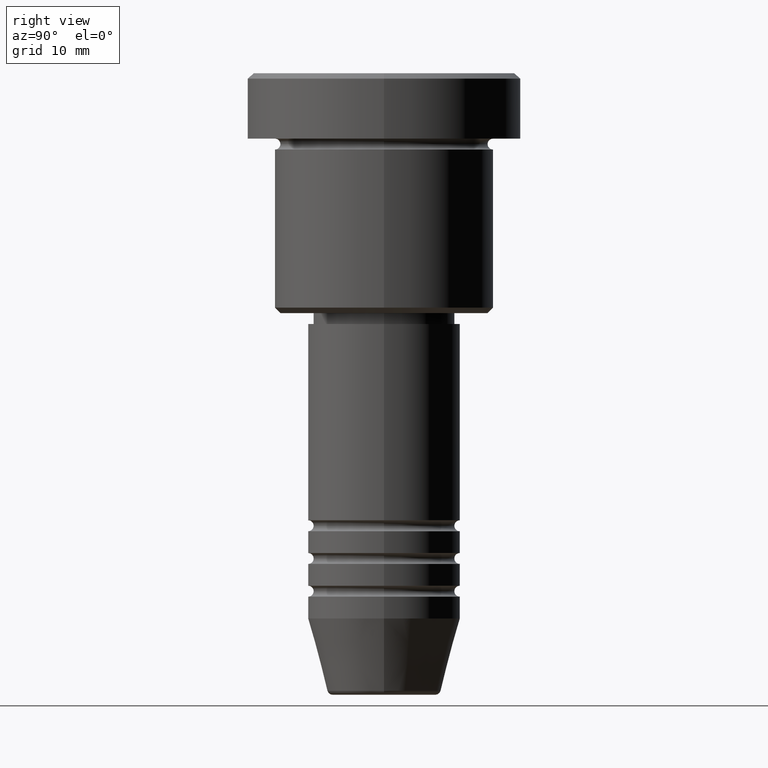
[diagram: clean part render]
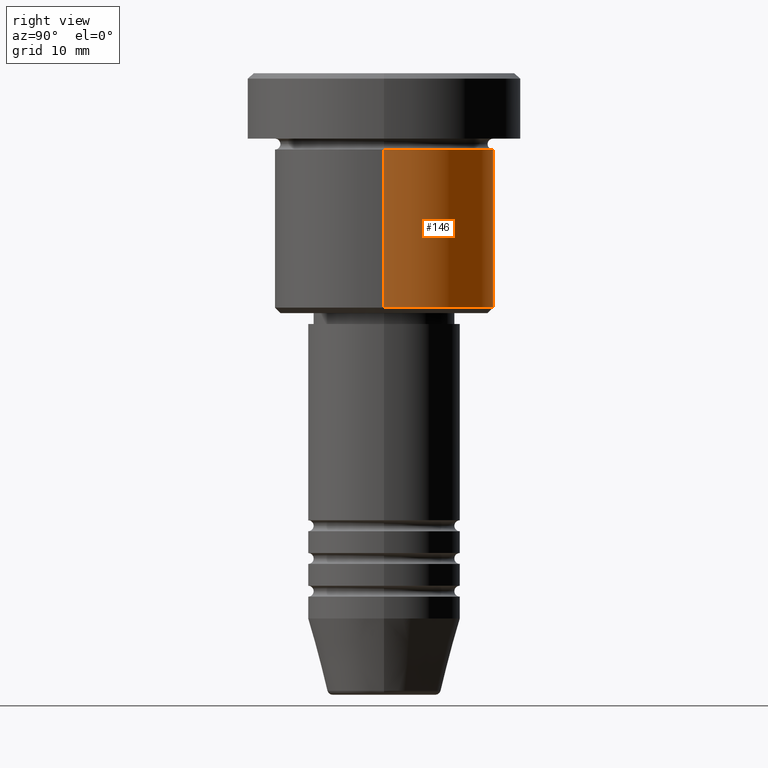
[diagram: same view with one face highlighted and labeled with its STEP entity id]
A machine part, right view. The second image highlights one B-rep face of the part: STEP entity #146.
In plain terms, the highlighted cylindrical surface (partial cylindrical patch) has radius 10 mm, axis along (-0, -0, 1).
Its self-contained STEP definition (entity closure, byte-faithful):
#9 = EDGE_CURVE ( 'NONE', #632, #366, #572, .T. ) ;
#32 = VERTEX_POINT ( 'NONE', #753 ) ;
#81 = CIRCLE ( 'NONE', #833, 10.00000000000000000 ) ;
#88 = AXIS2_PLACEMENT_3D ( 'NONE', #239, #878, #793 ) ;
#104 = AXIS2_PLACEMENT_3D ( 'NONE', #594, #872, #1050 ) ;
#109 = LINE ( 'NONE', #476, #1105 ) ;
#113 = CARTESIAN_POINT ( 'NONE',  ( 0.000000000000000000, 0.000000000000000000, -21.50000000000000000 ) ) ;
#146 = ADVANCED_FACE ( 'NONE', ( #1146 ), #614, .T. ) ;
#232 = CARTESIAN_POINT ( 'NONE',  ( 10.00000000000000000, 0.000000000000000000, -6.999999999999996447 ) ) ;
#238 = EDGE_LOOP ( 'NONE', ( #554, #617, #722, #1058 ) ) ;
#239 = CARTESIAN_POINT ( 'NONE',  ( 0.000000000000000000, 0.000000000000000000, 0.000000000000000000 ) ) ;
#256 = CARTESIAN_POINT ( 'NONE',  ( -10.00000000000000000, 1.224646799147353256E-15, -6.999999999999996447 ) ) ;
#304 = DIRECTION ( 'NONE',  ( -0.000000000000000000, -0.000000000000000000, 1.000000000000000000 ) ) ;
#363 = EDGE_CURVE ( 'NONE', #366, #838, #623, .T. ) ;
#366 = VERTEX_POINT ( 'NONE', #232 ) ;
#389 = EDGE_CURVE ( 'NONE', #632, #32, #81, .T. ) ;
#475 = CARTESIAN_POINT ( 'NONE',  ( 10.00000000000000000, 0.000000000000000000, -21.50000000000000000 ) ) ;
#476 = CARTESIAN_POINT ( 'NONE',  ( -10.00000000000000000, 1.224646799147353256E-15, 0.000000000000000000 ) ) ;
#489 = DIRECTION ( 'NONE',  ( -1.000000000000000000, 0.000000000000000000, 0.000000000000000000 ) ) ;
#494 = EDGE_CURVE ( 'NONE', #32, #838, #109, .T. ) ;
#554 = ORIENTED_EDGE ( 'NONE', *, *, #389, .T. ) ;
#570 = DIRECTION ( 'NONE',  ( -0.000000000000000000, -0.000000000000000000, 1.000000000000000000 ) ) ;
#572 = LINE ( 'NONE', #1041, #808 ) ;
#594 = CARTESIAN_POINT ( 'NONE',  ( 0.000000000000000000, 0.000000000000000000, -6.999999999999996447 ) ) ;
#614 = CYLINDRICAL_SURFACE ( 'NONE', #88, 10.00000000000000000 ) ;
#617 = ORIENTED_EDGE ( 'NONE', *, *, #494, .T. ) ;
#623 = CIRCLE ( 'NONE', #104, 10.00000000000000000 ) ;
#632 = VERTEX_POINT ( 'NONE', #475 ) ;
#722 = ORIENTED_EDGE ( 'NONE', *, *, #363, .F. ) ;
#753 = CARTESIAN_POINT ( 'NONE',  ( -10.00000000000000000, 1.224646799147353256E-15, -21.50000000000000000 ) ) ;
#793 = DIRECTION ( 'NONE',  ( 1.000000000000000000, 0.000000000000000000, 0.000000000000000000 ) ) ;
#808 = VECTOR ( 'NONE', #304, 1000.000000000000000 ) ;
#833 = AXIS2_PLACEMENT_3D ( 'NONE', #113, #1025, #489 ) ;
#838 = VERTEX_POINT ( 'NONE', #256 ) ;
#872 = DIRECTION ( 'NONE',  ( -0.000000000000000000, -0.000000000000000000, 1.000000000000000000 ) ) ;
#878 = DIRECTION ( 'NONE',  ( -0.000000000000000000, -0.000000000000000000, 1.000000000000000000 ) ) ;
#1025 = DIRECTION ( 'NONE',  ( -0.000000000000000000, -0.000000000000000000, 1.000000000000000000 ) ) ;
#1041 = CARTESIAN_POINT ( 'NONE',  ( 10.00000000000000000, 0.000000000000000000, 0.000000000000000000 ) ) ;
#1050 = DIRECTION ( 'NONE',  ( 1.000000000000000000, 0.000000000000000000, 0.000000000000000000 ) ) ;
#1058 = ORIENTED_EDGE ( 'NONE', *, *, #9, .F. ) ;
#1105 = VECTOR ( 'NONE', #570, 1000.000000000000000 ) ;
#1146 = FACE_OUTER_BOUND ( 'NONE', #238, .T. ) ;